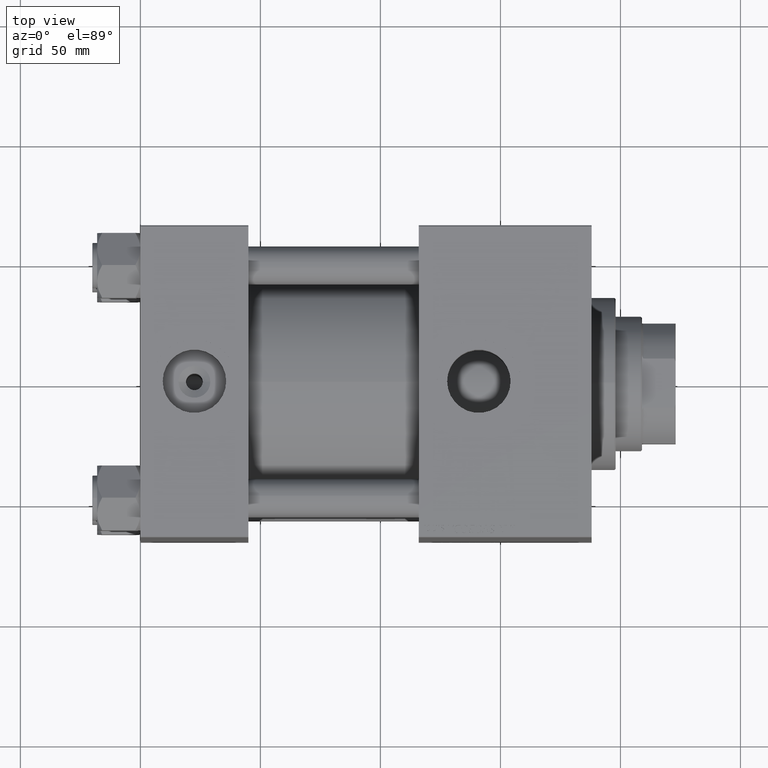
[diagram: clean part render]
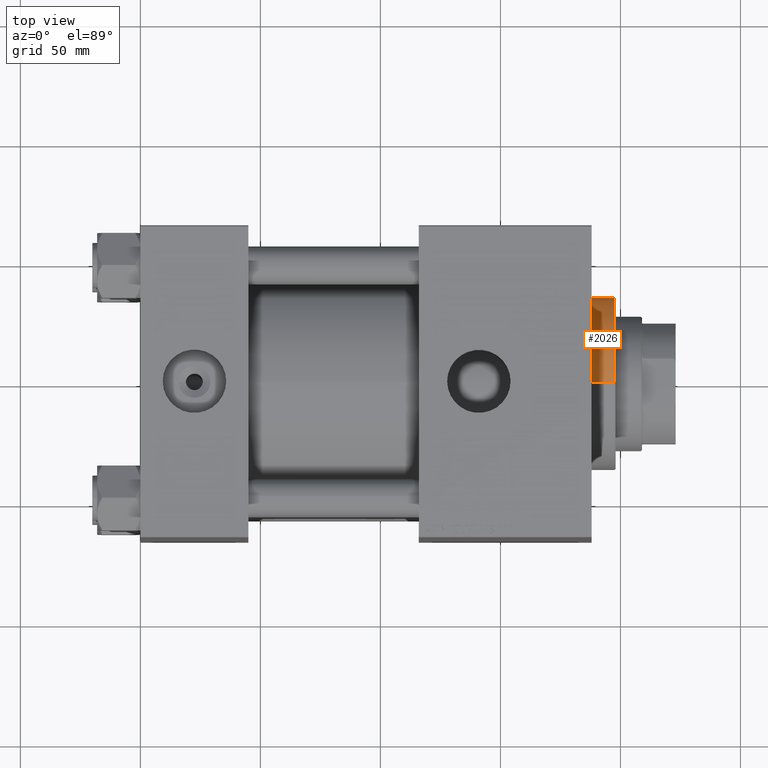
[diagram: same view with one face highlighted and labeled with its STEP entity id]
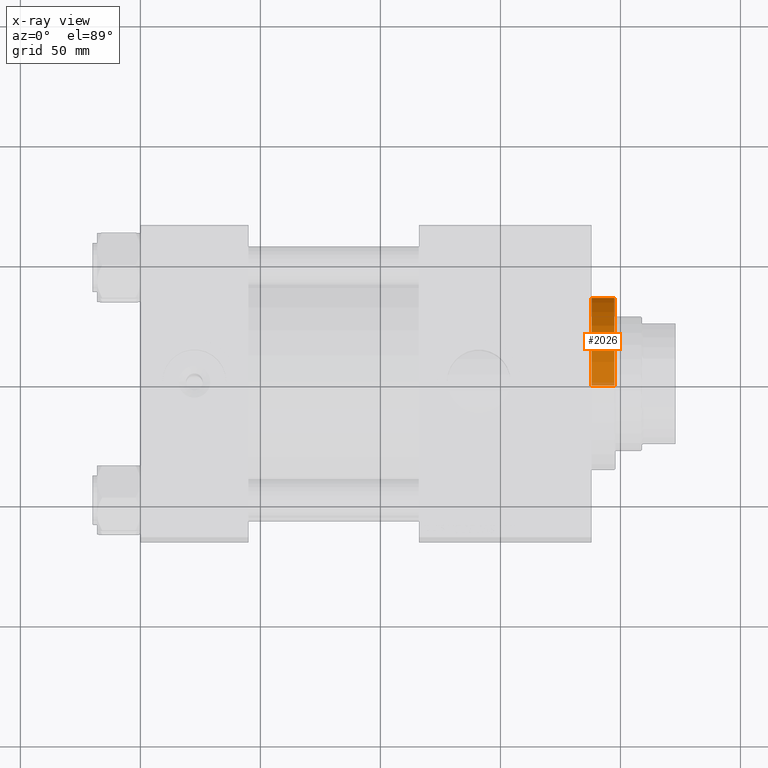
[diagram: x-ray of the same camera — body ghosted, the highlighted face saturated]
A machine part, top view. The second image highlights one B-rep face of the part: STEP entity #2026.
The next image is the same camera in x-ray: the body ghosted, the highlighted face saturated — about 3% of this face is hidden behind the body in this view.
In plain terms, the highlighted cylindrical surface (partial cylindrical patch) has radius 36 mm, axis along (-1, -0, -0).
Its self-contained STEP definition (entity closure, byte-faithful):
#1204 = ORIENTED_EDGE ( 'NONE', *, *, #13540, .T. ) ;
#2026 = ADVANCED_FACE ( 'NONE', ( #25881 ), #18660, .T. ) ;
#3202 = ORIENTED_EDGE ( 'NONE', *, *, #33065, .F. ) ;
#3355 = DIRECTION ( 'NONE',  ( 0.000000000000000000, 0.000000000000000000, 1.000000000000000000 ) ) ;
#5400 = ORIENTED_EDGE ( 'NONE', *, *, #42401, .T. ) ;
#5865 = DIRECTION ( 'NONE',  ( 0.000000000000000000, 0.000000000000000000, -1.000000000000000000 ) ) ;
#8918 = CARTESIAN_POINT ( 'NONE',  ( 36.00000000000000000, 4.408728476930470856E-15, 28.69999999999999929 ) ) ;
#11089 = DIRECTION ( 'NONE',  ( 1.000000000000000000, 0.000000000000000000, 0.000000000000000000 ) ) ;
#12134 = VECTOR ( 'NONE', #30878, 1000.000000000000000 ) ;
#13540 = EDGE_CURVE ( 'NONE', #26351, #39867, #24112, .T. ) ;
#14313 = DIRECTION ( 'NONE',  ( -1.000000000000000000, 0.000000000000000000, 0.000000000000000000 ) ) ;
#14851 = CARTESIAN_POINT ( 'NONE',  ( -36.00000000000000000, 0.000000000000000000, 28.69999999999999929 ) ) ;
#15424 = LINE ( 'NONE', #46308, #12134 ) ;
#18062 = AXIS2_PLACEMENT_3D ( 'NONE', #26161, #5865, #34136 ) ;
#18660 = CYLINDRICAL_SURFACE ( 'NONE', #29048, 36.00000000000000000 ) ;
#20359 = EDGE_LOOP ( 'NONE', ( #5400, #1204, #45660, #3202 ) ) ;
#24112 = LINE ( 'NONE', #24373, #36832 ) ;
#24373 = CARTESIAN_POINT ( 'NONE',  ( 36.00000000000000000, 4.408728476930470856E-15, 38.69999999999999574 ) ) ;
#25881 = FACE_OUTER_BOUND ( 'NONE', #20359, .T. ) ;
#26161 = CARTESIAN_POINT ( 'NONE',  ( 0.000000000000000000, 0.000000000000000000, 38.19999999999998863 ) ) ;
#26351 = VERTEX_POINT ( 'NONE', #32535 ) ;
#26517 = CARTESIAN_POINT ( 'NONE',  ( 0.000000000000000000, 0.000000000000000000, 28.69999999999999929 ) ) ;
#27064 = AXIS2_PLACEMENT_3D ( 'NONE', #26517, #3355, #11089 ) ;
#29048 = AXIS2_PLACEMENT_3D ( 'NONE', #46193, #50065, #14313 ) ;
#30878 = DIRECTION ( 'NONE',  ( -0.000000000000000000, -0.000000000000000000, -1.000000000000000000 ) ) ;
#32120 = DIRECTION ( 'NONE',  ( -0.000000000000000000, -0.000000000000000000, -1.000000000000000000 ) ) ;
#32535 = CARTESIAN_POINT ( 'NONE',  ( 36.00000000000000000, 4.408728476930470856E-15, 38.19999999999998863 ) ) ;
#33065 = EDGE_CURVE ( 'NONE', #39417, #36641, #15424, .T. ) ;
#34136 = DIRECTION ( 'NONE',  ( 1.000000000000000000, 0.000000000000000000, 0.000000000000000000 ) ) ;
#36641 = VERTEX_POINT ( 'NONE', #14851 ) ;
#36832 = VECTOR ( 'NONE', #32120, 1000.000000000000000 ) ;
#39417 = VERTEX_POINT ( 'NONE', #47293 ) ;
#39867 = VERTEX_POINT ( 'NONE', #8918 ) ;
#41089 = CIRCLE ( 'NONE', #18062, 36.00000000000000000 ) ;
#42401 = EDGE_CURVE ( 'NONE', #39417, #26351, #41089, .T. ) ;
#45117 = CIRCLE ( 'NONE', #27064, 36.00000000000000000 ) ;
#45631 = EDGE_CURVE ( 'NONE', #39867, #36641, #45117, .T. ) ;
#45660 = ORIENTED_EDGE ( 'NONE', *, *, #45631, .T. ) ;
#46193 = CARTESIAN_POINT ( 'NONE',  ( 0.000000000000000000, 0.000000000000000000, 38.69999999999999574 ) ) ;
#46308 = CARTESIAN_POINT ( 'NONE',  ( -36.00000000000000000, 0.000000000000000000, 38.69999999999999574 ) ) ;
#47293 = CARTESIAN_POINT ( 'NONE',  ( -36.00000000000000000, 0.000000000000000000, 38.19999999999998863 ) ) ;
#50065 = DIRECTION ( 'NONE',  ( -0.000000000000000000, -0.000000000000000000, -1.000000000000000000 ) ) ;